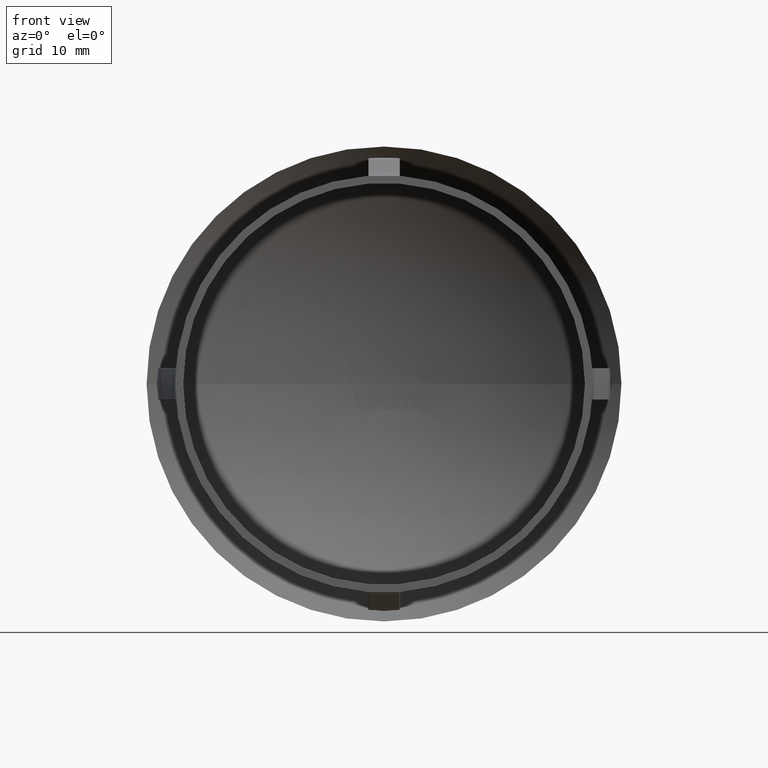
[diagram: clean part render]
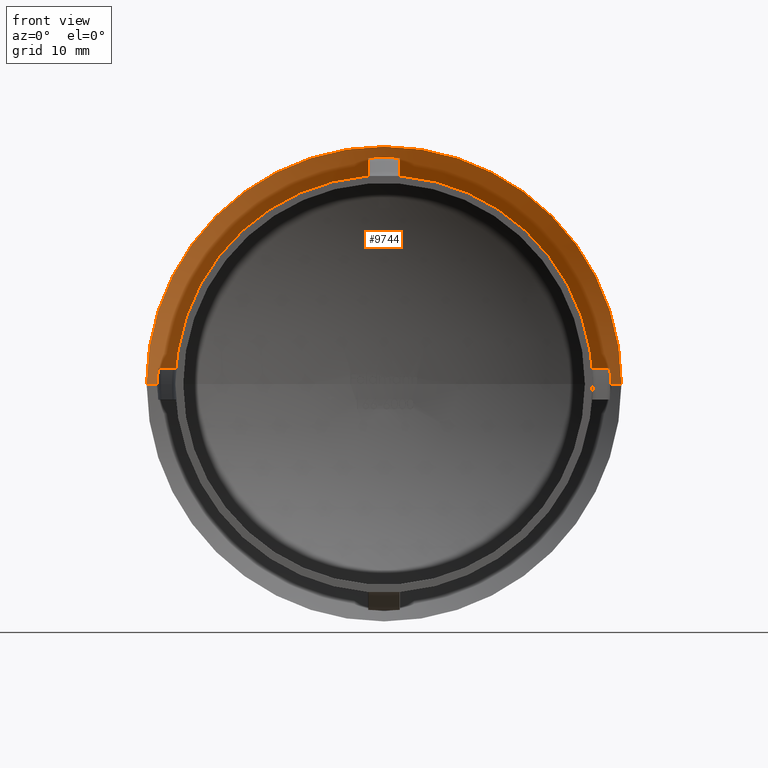
[diagram: same view with one face highlighted and labeled with its STEP entity id]
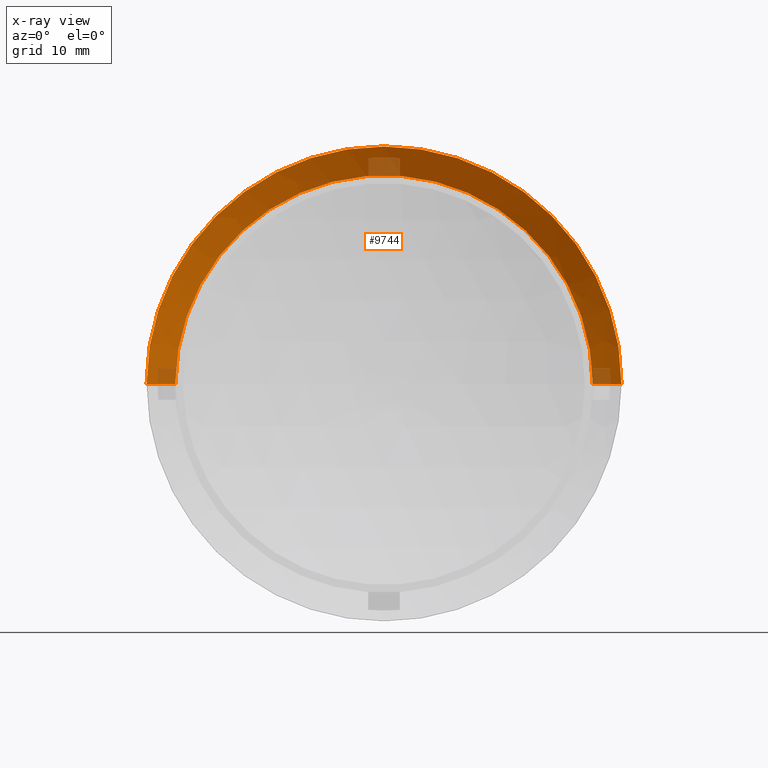
[diagram: x-ray of the same camera — body ghosted, the highlighted face saturated]
A machine part, front view. The second image highlights one B-rep face of the part: STEP entity #9744.
The next image is the same camera in x-ray: the body ghosted, the highlighted face saturated — about 6% of this face is hidden behind the body in this view.
In plain terms, the highlighted spherical surface has radius 47.5 mm.
Its self-contained STEP definition (entity closure, byte-faithful):
#15 = CARTESIAN_POINT ( 'NONE',  ( -3.686186865433533300E-015, -13.20000000000000300, 0.0000000000000000000 ) ) ;
#424 = EDGE_CURVE ( 'NONE', #5835, #3407, #10199, .T. ) ;
#433 = DIRECTION ( 'NONE',  ( 1.000000000000000000, -2.702516573100709900E-015, 0.0000000000000000000 ) ) ;
#732 = AXIS2_PLACEMENT_3D ( 'NONE', #15, #3638, #8040 ) ;
#1044 = AXIS2_PLACEMENT_3D ( 'NONE', #10744, #7444, #11820 ) ;
#1147 = AXIS2_PLACEMENT_3D ( 'NONE', #1575, #2654, #433 ) ;
#1484 = EDGE_LOOP ( 'NONE', ( #13431, #2136, #5742, #5665 ) ) ;
#1575 = CARTESIAN_POINT ( 'NONE',  ( -3.686186865433533300E-015, -13.20000000000000300, 0.0000000000000000000 ) ) ;
#1719 = DIRECTION ( 'NONE',  ( 1.224646799147353200E-016, -3.305470560986731600E-031, 1.000000000000000000 ) ) ;
#2136 = ORIENTED_EDGE ( 'NONE', *, *, #7984, .F. ) ;
#2654 = DIRECTION ( 'NONE',  ( -0.0000000000000000000, 0.0000000000000000000, 1.000000000000000000 ) ) ;
#2810 = CIRCLE ( 'NONE', #3033, 26.50000000000001800 ) ;
#3033 = AXIS2_PLACEMENT_3D ( 'NONE', #12350, #11178, #6735 ) ;
#3374 = CIRCLE ( 'NONE', #1044, 30.15000000000002300 ) ;
#3407 = VERTEX_POINT ( 'NONE', #5682 ) ;
#3638 = DIRECTION ( 'NONE',  ( 0.0000000000000000000, 0.0000000000000000000, -1.000000000000000000 ) ) ;
#4115 = VERTEX_POINT ( 'NONE', #6467 ) ;
#4116 = DIRECTION ( 'NONE',  ( 1.000000000000000000, 0.0000000000000000000, -1.224646799147353200E-016 ) ) ;
#4640 = EDGE_CURVE ( 'NONE', #4115, #6009, #9971, .T. ) ;
#5665 = ORIENTED_EDGE ( 'NONE', *, *, #7463, .T. ) ;
#5682 = CARTESIAN_POINT ( 'NONE',  ( -30.14999999999993100, 23.50459780463493700, 3.692310099429272800E-015 ) ) ;
#5742 = ORIENTED_EDGE ( 'NONE', *, *, #4640, .T. ) ;
#5835 = VERTEX_POINT ( 'NONE', #10752 ) ;
#5922 = AXIS2_PLACEMENT_3D ( 'NONE', #7574, #1719, #4116 ) ;
#5992 = SPHERICAL_SURFACE ( 'NONE', #1147, 47.50000000000000000 ) ;
#6009 = VERTEX_POINT ( 'NONE', #12073 ) ;
#6467 = CARTESIAN_POINT ( 'NONE',  ( 26.49999999999999600, 26.22080668885404700, 0.0000000000000000000 ) ) ;
#6735 = DIRECTION ( 'NONE',  ( 1.000000000000000000, -2.749373056265126400E-015, 0.0000000000000000000 ) ) ;
#7444 = DIRECTION ( 'NONE',  ( -2.699121545320764300E-015, -1.000000000000000000, -0.0000000000000000000 ) ) ;
#7463 = EDGE_CURVE ( 'NONE', #6009, #3407, #3374, .T. ) ;
#7574 = CARTESIAN_POINT ( 'NONE',  ( -3.686186865433533300E-015, -13.20000000000000300, 0.0000000000000000000 ) ) ;
#7984 = EDGE_CURVE ( 'NONE', #4115, #5835, #2810, .T. ) ;
#8040 = DIRECTION ( 'NONE',  ( -1.000000000000000000, 0.0000000000000000000, 0.0000000000000000000 ) ) ;
#8487 = FACE_OUTER_BOUND ( 'NONE', #1484, .T. ) ;
#9744 = ADVANCED_FACE ( 'NONE', ( #8487 ), #5992, .F. ) ;
#9971 = CIRCLE ( 'NONE', #732, 47.50000000000000000 ) ;
#10199 = CIRCLE ( 'NONE', #5922, 47.50000000000000000 ) ;
#10744 = CARTESIAN_POINT ( 'NONE',  ( -2.913810265591313300E-014, 23.50459780463485500, 0.0000000000000000000 ) ) ;
#10752 = CARTESIAN_POINT ( 'NONE',  ( -26.50000000000003900, 26.22080668885419300, 3.468812058584881000E-015 ) ) ;
#11178 = DIRECTION ( 'NONE',  ( -2.699121545320764300E-015, -1.000000000000000000, -0.0000000000000000000 ) ) ;
#11820 = DIRECTION ( 'NONE',  ( 1.000000000000000000, -2.646675950080698700E-015, 0.0000000000000000000 ) ) ;
#12073 = CARTESIAN_POINT ( 'NONE',  ( 30.14999999999999900, 23.50459780463477700, 0.0000000000000000000 ) ) ;
#12350 = CARTESIAN_POINT ( 'NONE',  ( -2.180672473492524900E-014, 26.22080668885411800, 0.0000000000000000000 ) ) ;
#13431 = ORIENTED_EDGE ( 'NONE', *, *, #424, .F. ) ;